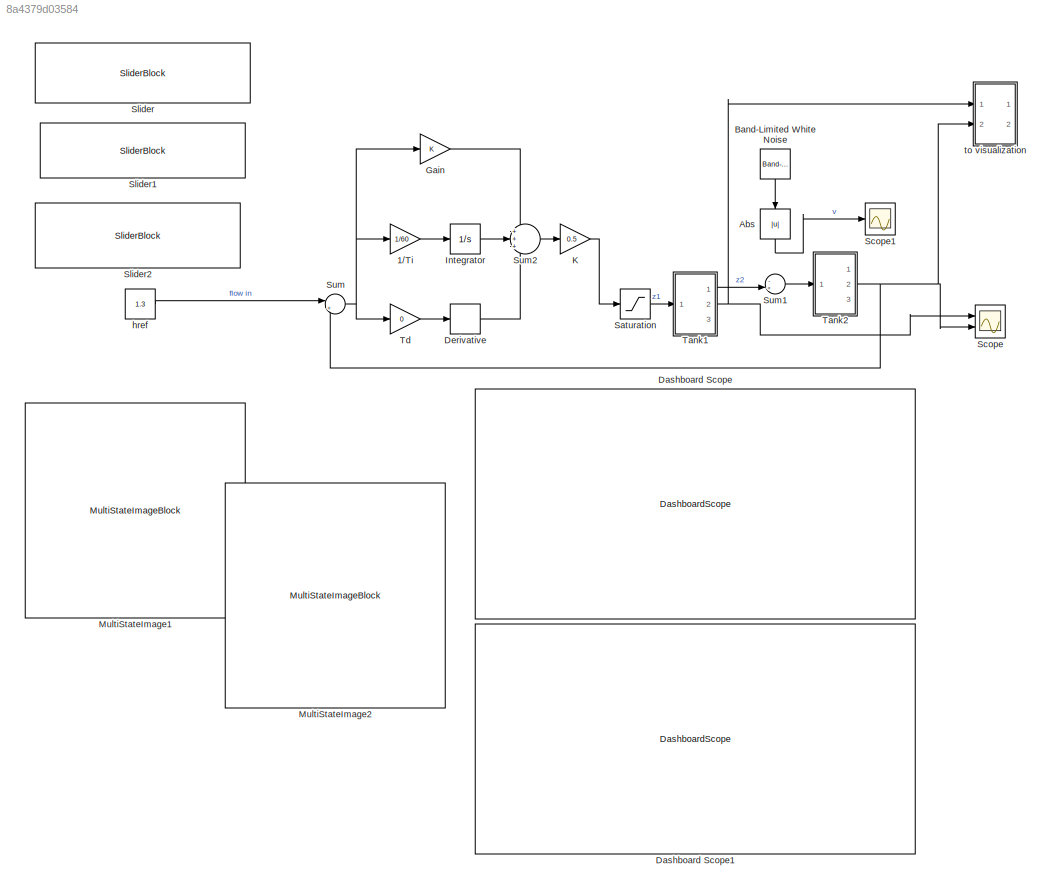
MODEL slx_8a4379d03584
KIND model
CONFIG AbsTol = auto
CONFIG EnableMultiTasking = off
CONFIG FixedStep = 0.1
CONFIG MaxStep = auto
CONFIG MinStep = auto
CONFIG RelTol = 1e-3
CONFIG SampleTimeConstraint = Unconstrained
CONFIG Solver = FixedStepAuto
CONFIG SolverName = FixedStepAuto
CONFIG StartTime = 0.0
CONFIG StopTime = 120
WORKSPACE source: MATLAB code (in-file)
WORKSPACE A1 = 1
WORKSPACE a1 = 0.1*0.1  (= 0.01)
WORKSPACE A2 = A1  (= 1)
WORKSPACE a2 = a1  (= 0.01)
WORKSPACE h10 = 1
WORKSPACE h20 = 1
BLOCK [Gain] 1//Ti
  Gain = 1/60
  OutDataTypeStr = Inherit: Inherit via internal rule
  ParamDataTypeStr = Inherit: Inherit via internal rule
  SaturateOnIntegerOverflow = off
BLOCK [Abs] Abs
  SaturateOnIntegerOverflow = off
BLOCK [Reference] Band-Limited White Noise  REF=simulink/Sources/Band-Limited
White Noise
  Ports = [0, 1]
  SourceBlock = simulink/Sources/Band-Limited\nWhite Noise
  SourceProductBaseCode = SL
  SourceProductName = Simulink
  SourceType = Band-Limited White Noise.
BLOCK [DashboardScope] Dashboard Scope
  WebBlockId = 50
  Ymax = 2.6000000000000001
  Ymin = 0
BLOCK [DashboardScope] Dashboard Scope1
  WebBlockId = 91
  Ymax = 0.29999999999999999
  Ymin = 0
BLOCK [Derivative] Derivative
  CoefficientInTFapproximation = 100
BLOCK [Gain] Gain
  OutDataTypeStr = Inherit: Inherit via internal rule
  ParamDataTypeStr = Inherit: Inherit via internal rule
  SaturateOnIntegerOverflow = off
BLOCK [Integrator] Integrator
  Ports = [1, 1]
BLOCK [Gain] K
  Gain = 0.5
  OutDataTypeStr = Inherit: Inherit via internal rule
  ParamDataTypeStr = Inherit: Inherit via internal rule
  SaturateOnIntegerOverflow = off
BLOCK [MultiStateImageBlock] MultiStateImage1
  WebBlockId = 71
BLOCK [MultiStateImageBlock] MultiStateImage2
  WebBlockId = 74
BLOCK [Saturate] Saturation
  InputPortMap = u0
  LowerLimit = 0
  Ports = [1, 1]
BLOCK [Scope] Scope
  Floating = off
  NumInputPorts = 2
  Ports = [2]
  ScopeSpecificationString = Simulink.scopes.TimeScopeBlockCfg('CurrentConfiguration', extmgr.ConfigurationSet(extmgr.Configuration('Core','General UI',true),extmgr.Configuration('Core','Source UI',true),extmgr.Configuration('Sources','WiredSimulink',true),extmgr.Configuration('Visuals','Time Domain',true,'SerializedDisplays',{struct('MinYLimReal','0.52224','MaxYLimReal','2.39989','YLabelReal','','MinYLimMag','0.52224','MaxYL...<+1392ch>
BLOCK [Scope] Scope1
  Floating = off
  NumInputPorts = 1
  Ports = [1]
  ScopeSpecificationString = Simulink.scopes.TimeScopeBlockCfg('CurrentConfiguration', extmgr.ConfigurationSet(extmgr.Configuration('Core','General UI',true),extmgr.Configuration('Core','Source UI',true),extmgr.Configuration('Sources','WiredSimulink',true,'DataLoggingVariableName','ScopeData1'),extmgr.Configuration('Visuals','Time Domain',true,'SerializedDisplays',{struct('MinYLimReal','-0.00124','MaxYLimReal','0.01545','YLab...<+1413ch>
BLOCK [SliderBlock] Slider
  ScaleMax = 0.5
  WebBlockId = 82
BLOCK [SliderBlock] Slider1
  ScaleMax = 0.10000000000000001
  WebBlockId = 85
BLOCK [SliderBlock] Slider2
  ScaleMax = 60
  WebBlockId = 90
BLOCK [Sum] Sum
  IconShape = round
  InputSameDT = off
  Inputs = |+-
  OutDataTypeStr = Inherit: Inherit via internal rule
  Ports = [2, 1]
  SaturateOnIntegerOverflow = off
BLOCK [Sum] Sum1
  IconShape = round
  InputSameDT = off
  Inputs = -+|
  OutDataTypeStr = Inherit: Inherit via internal rule
  Ports = [2, 1]
  SaturateOnIntegerOverflow = off
BLOCK [Sum] Sum2
  IconShape = round
  InputSameDT = off
  Inputs = +++
  OutDataTypeStr = Inherit: Inherit via internal rule
  Ports = [3, 1]
  SaturateOnIntegerOverflow = off
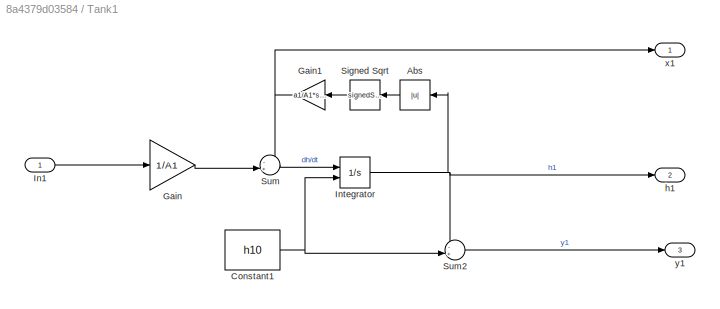
BLOCK [SubSystem] Tank1
  Ports = [1, 3]
  RequestExecContextInheritance = off
BLOCK [Abs] Tank1/Abs
  SaturateOnIntegerOverflow = off
BLOCK [Constant] Tank1/Constant1
  Value = h10
BLOCK [Gain] Tank1/Gain
  Gain = 1/A1
  OutDataTypeStr = Inherit: Inherit via internal rule
  ParamDataTypeStr = Inherit: Inherit via internal rule
  SaturateOnIntegerOverflow = off
BLOCK [Gain] Tank1/Gain1
  Gain = a1/A1*sqrt(2*9.8)
  OutDataTypeStr = Inherit: Inherit via internal rule
  ParamDataTypeStr = Inherit: Inherit via internal rule
  SaturateOnIntegerOverflow = off
BLOCK [Inport] Tank1/In1
  IconDisplay = Port number
BLOCK [Integrator] Tank1/Integrator
  InitialCondition = h10
  InitialConditionSource = external
  Ports = [2, 1]
BLOCK [Sqrt] Tank1/Signed Sqrt
  Operator = signedSqrt
BLOCK [Sum] Tank1/Sum
  IconShape = round
  InputSameDT = off
  Inputs = -+|
  OutDataTypeStr = Inherit: Inherit via internal rule
  Ports = [2, 1]
  SaturateOnIntegerOverflow = off
BLOCK [Sum] Tank1/Sum2
  IconShape = round
  InputSameDT = off
  Inputs = -+|
  OutDataTypeStr = Inherit: Inherit via internal rule
  Ports = [2, 1]
  SaturateOnIntegerOverflow = off
BLOCK [Outport] Tank1/h1
  IconDisplay = Port number
  Port = 2
BLOCK [Outport] Tank1/x1
  IconDisplay = Port number
BLOCK [Outport] Tank1/y1
  IconDisplay = Port number
  Port = 3
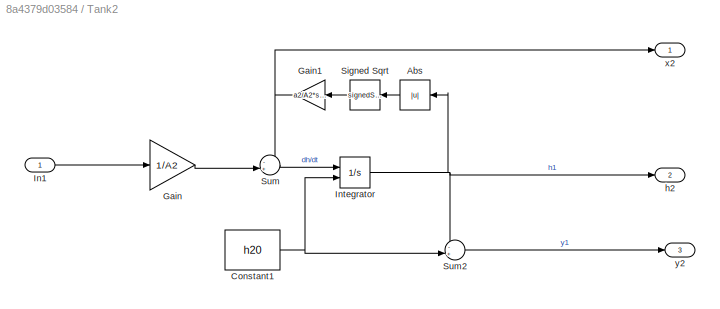
BLOCK [SubSystem] Tank2
  Ports = [1, 3]
  RequestExecContextInheritance = off
BLOCK [Abs] Tank2/Abs
  SaturateOnIntegerOverflow = off
BLOCK [Constant] Tank2/Constant1
  Value = h20
BLOCK [Gain] Tank2/Gain
  Gain = 1/A2
  OutDataTypeStr = Inherit: Inherit via internal rule
  ParamDataTypeStr = Inherit: Inherit via internal rule
  SaturateOnIntegerOverflow = off
BLOCK [Gain] Tank2/Gain1
  Gain = a2/A2*sqrt(2*9.8)
  OutDataTypeStr = Inherit: Inherit via internal rule
  ParamDataTypeStr = Inherit: Inherit via internal rule
  SaturateOnIntegerOverflow = off
BLOCK [Inport] Tank2/In1
  IconDisplay = Port number
BLOCK [Integrator] Tank2/Integrator
  InitialCondition = h10
  InitialConditionSource = external
  Ports = [2, 1]
BLOCK [Sqrt] Tank2/Signed Sqrt
  Operator = signedSqrt
BLOCK [Sum] Tank2/Sum
  IconShape = round
  InputSameDT = off
  Inputs = -+|
  OutDataTypeStr = Inherit: Inherit via internal rule
  Ports = [2, 1]
  SaturateOnIntegerOverflow = off
BLOCK [Sum] Tank2/Sum2
  IconShape = round
  InputSameDT = off
  Inputs = -+|
  OutDataTypeStr = Inherit: Inherit via internal rule
  Ports = [2, 1]
  SaturateOnIntegerOverflow = off
BLOCK [Outport] Tank2/h2
  IconDisplay = Port number
  Port = 2
BLOCK [Outport] Tank2/x2
  IconDisplay = Port number
BLOCK [Outport] Tank2/y2
  IconDisplay = Port number
  Port = 3
BLOCK [Gain] Td
  Gain = 0
  OutDataTypeStr = Inherit: Inherit via internal rule
  ParamDataTypeStr = Inherit: Inherit via internal rule
  SaturateOnIntegerOverflow = off
BLOCK [Constant] href
  Value = 1.3
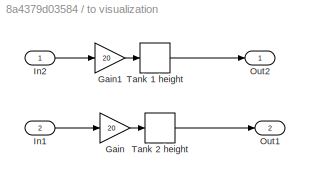
BLOCK [SubSystem] to visualization
  Ports = [2, 2]
  RequestExecContextInheritance = off
BLOCK [Gain] to visualization/Gain
  Gain = 20
  OutDataTypeStr = Inherit: Inherit via internal rule
  ParamDataTypeStr = Inherit: Inherit via internal rule
  SaturateOnIntegerOverflow = off
BLOCK [Gain] to visualization/Gain1
  Gain = 20
  OutDataTypeStr = Inherit: Inherit via internal rule
  ParamDataTypeStr = Inherit: Inherit via internal rule
  SaturateOnIntegerOverflow = off
BLOCK [Inport] to visualization/In1
  IconDisplay = Port number
  Port = 2
BLOCK [Inport] to visualization/In2
  IconDisplay = Port number
BLOCK [Outport] to visualization/Out1
  IconDisplay = Port number
  Port = 2
BLOCK [Outport] to visualization/Out2
  IconDisplay = Port number
BLOCK [Rounding] to visualization/Tank 1 height
BLOCK [Rounding] to visualization/Tank 2 height
LINE 1//Ti:1 -> Integrator:1
LINE Abs:1 -> Scope1:1
LINE Band-Limited White Noise:1 -> Abs:1
LINE Derivative:1 -> Sum2:3
LINE Gain:1 -> Sum2:1
LINE Integrator:1 -> Sum2:2
LINE K:1 -> Saturation:1
LINE Saturation:1 -> Tank1:1
LINE Sum1:1 -> Tank2:1
LINE Sum2:1 -> K:1
NET Sum:1 -> 1//Ti:1, Gain:1, Td:1
LINE Tank1/Abs:1 -> Tank1/Signed Sqrt:1
NET Tank1/Constant1:1 -> Tank1/Integrator:2, Tank1/Sum2:2
NET Tank1/Gain1:1 -> Tank1/Sum:1, Tank1/x1:1
LINE Tank1/Gain:1 -> Tank1/Sum:2
LINE Tank1/In1:1 -> Tank1/Gain:1
NET Tank1/Integrator:1 -> Tank1/Abs:1, Tank1/Sum2:1, Tank1/h1:1
LINE Tank1/Signed Sqrt:1 -> Tank1/Gain1:1
LINE Tank1/Sum2:1 -> Tank1/y1:1
LINE Tank1/Sum:1 -> Tank1/Integrator:1
LINE Tank1:1 -> Sum1:2
NET Tank1:2 -> Scope:1, to visualization:1
LINE Tank2/Abs:1 -> Tank2/Signed Sqrt:1
NET Tank2/Constant1:1 -> Tank2/Integrator:2, Tank2/Sum2:2
NET Tank2/Gain1:1 -> Tank2/Sum:1, Tank2/x2:1
LINE Tank2/Gain:1 -> Tank2/Sum:2
LINE Tank2/In1:1 -> Tank2/Gain:1
NET Tank2/Integrator:1 -> Tank2/Abs:1, Tank2/Sum2:1, Tank2/h2:1
LINE Tank2/Signed Sqrt:1 -> Tank2/Gain1:1
LINE Tank2/Sum2:1 -> Tank2/y2:1
LINE Tank2/Sum:1 -> Tank2/Integrator:1
NET Tank2:2 -> Scope:2, Sum:2, to visualization:2
LINE Td:1 -> Derivative:1
LINE href:1 -> Sum:1
LINE to visualization/Gain1:1 -> to visualization/Tank 1 height:1
LINE to visualization/Gain:1 -> to visualization/Tank 2 height:1
LINE to visualization/In1:1 -> to visualization/Gain:1
LINE to visualization/In2:1 -> to visualization/Gain1:1
LINE to visualization/Tank 1 height:1 -> to visualization/Out2:1
LINE to visualization/Tank 2 height:1 -> to visualization/Out1:1
note: NET lines group one-source signal fan-out (src -> all destinations, sorted); 1:1 wires keep LINE
